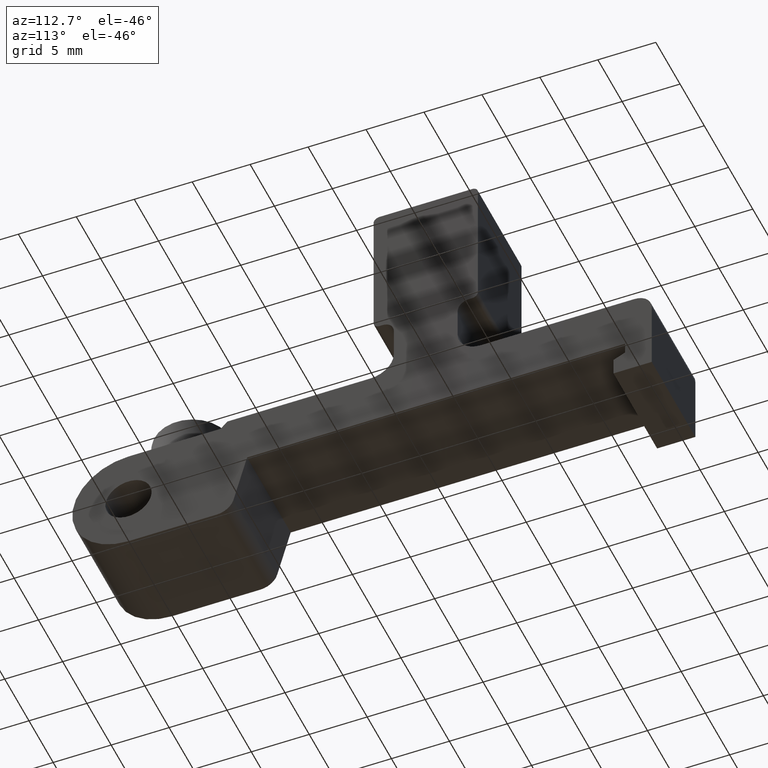
[diagram: clean part render]
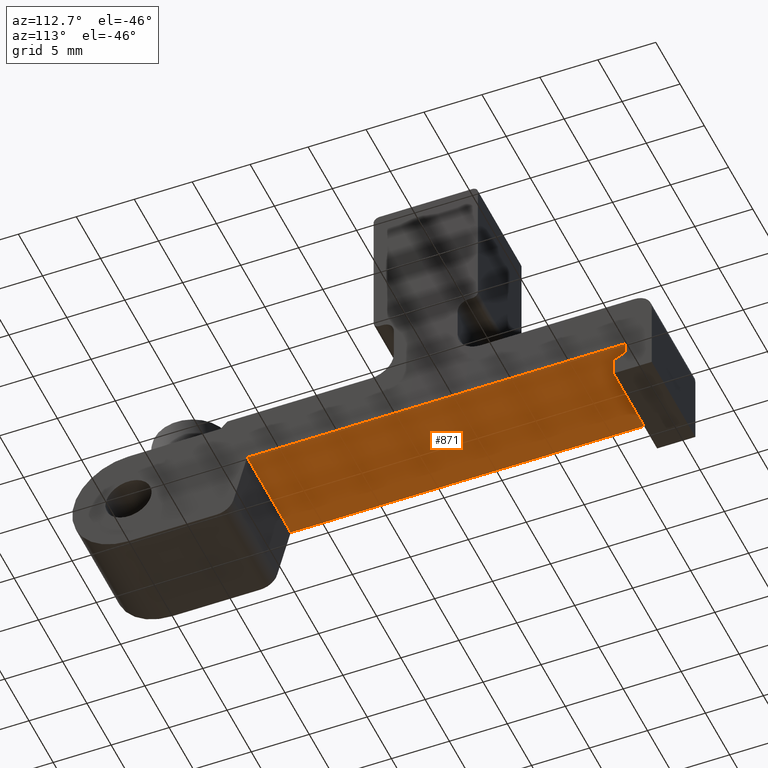
[diagram: same view with one face highlighted and labeled with its STEP entity id]
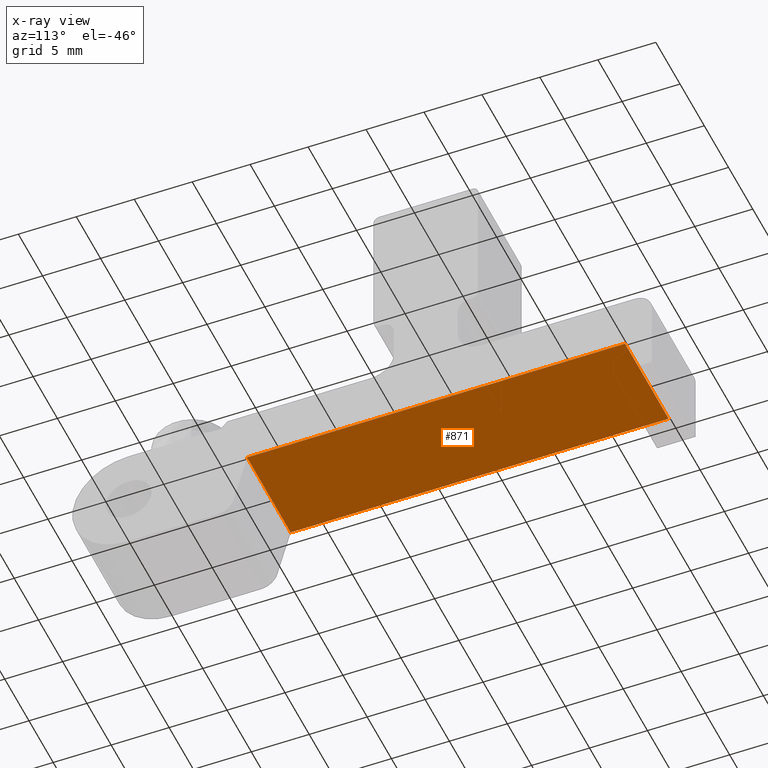
[diagram: x-ray of the same camera — body ghosted, the highlighted face saturated]
A machine part, auxiliary view. The second image highlights one B-rep face of the part: STEP entity #871.
The next image is the same camera in x-ray: the body ghosted, the highlighted face saturated — about 0% of this face is hidden behind the body in this view.
In plain terms, the highlighted planar face has unit normal (0, 0, -1).
Its self-contained STEP definition (entity closure, byte-faithful):
#51=PLANE('',#976);
#136=FACE_OUTER_BOUND('',#184,.T.);
#184=EDGE_LOOP('',(#810,#811,#812,#813));
#198=LINE('',#1267,#276);
#217=LINE('',#1327,#295);
#260=LINE('',#1463,#338);
#262=LINE('',#1468,#340);
#276=VECTOR('',#1008,10.);
#295=VECTOR('',#1063,10.);
#338=VECTOR('',#1216,10.);
#340=VECTOR('',#1224,10.);
#394=VERTEX_POINT('',#1264);
#395=VERTEX_POINT('',#1266);
#418=VERTEX_POINT('',#1326);
#456=VERTEX_POINT('',#1462);
#475=EDGE_CURVE('',#394,#395,#198,.T.);
#505=EDGE_CURVE('',#418,#395,#217,.T.);
#572=EDGE_CURVE('',#456,#394,#260,.T.);
#575=EDGE_CURVE('',#456,#418,#262,.T.);
#810=ORIENTED_EDGE('',*,*,#505,.T.);
#811=ORIENTED_EDGE('',*,*,#475,.F.);
#812=ORIENTED_EDGE('',*,*,#572,.F.);
#813=ORIENTED_EDGE('',*,*,#575,.T.);
#871=ADVANCED_FACE('',(#136),#51,.T.);
#976=AXIS2_PLACEMENT_3D('',#1469,#1225,#1226);
#1008=DIRECTION('',(0.,-1.,-1.20864092882988E-16));
#1063=DIRECTION('',(-1.,0.,0.));
#1216=DIRECTION('',(-1.,0.,0.));
#1224=DIRECTION('',(5.97393036573626E-17,-1.,-1.20864092882988E-16));
#1225=DIRECTION('center_axis',(0.,1.20864092882988E-16,-1.));
#1226=DIRECTION('ref_axis',(0.,1.,1.20864092882988E-16));
#1264=CARTESIAN_POINT('',(-4.5,17.5,0.650000000000002));
#1266=CARTESIAN_POINT('',(-4.5,-15.1126133696076,0.649999999999998));
#1267=CARTESIAN_POINT('',(-4.5,-17.15,0.649999999999998));
#1326=CARTESIAN_POINT('',(4.5,-15.1126133696076,0.649999999999998));
#1327=CARTESIAN_POINT('',(0.,-15.1126133696076,0.649999999999998));
#1462=CARTESIAN_POINT('',(4.5,17.5,0.650000000000002));
#1463=CARTESIAN_POINT('',(0.,17.5,0.650000000000002));
#1468=CARTESIAN_POINT('',(4.5,-11.2769784623489,0.649999999999998));
#1469=CARTESIAN_POINT('Origin',(0.,-17.15,0.649999999999998));